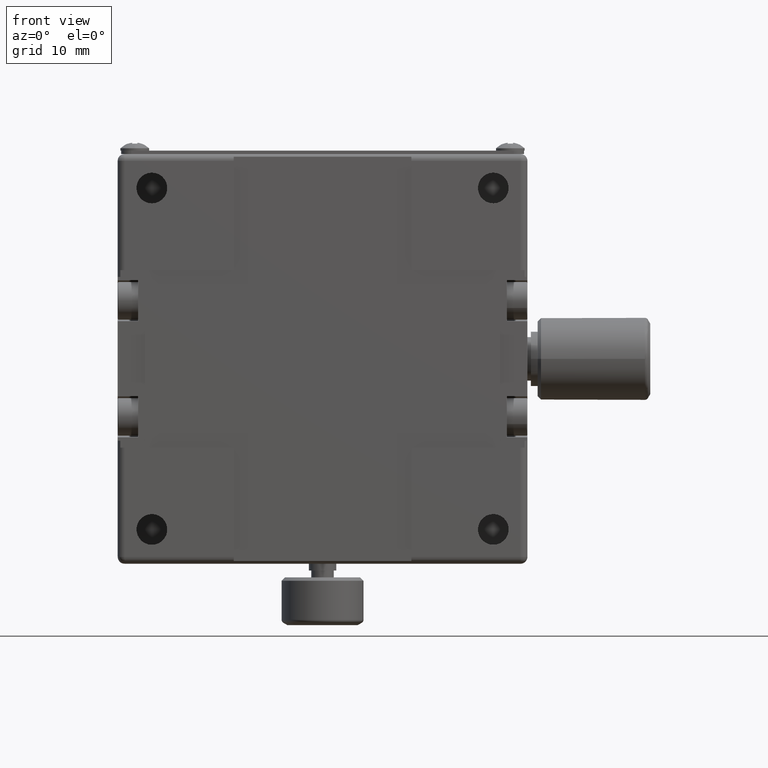
[diagram: clean part render]
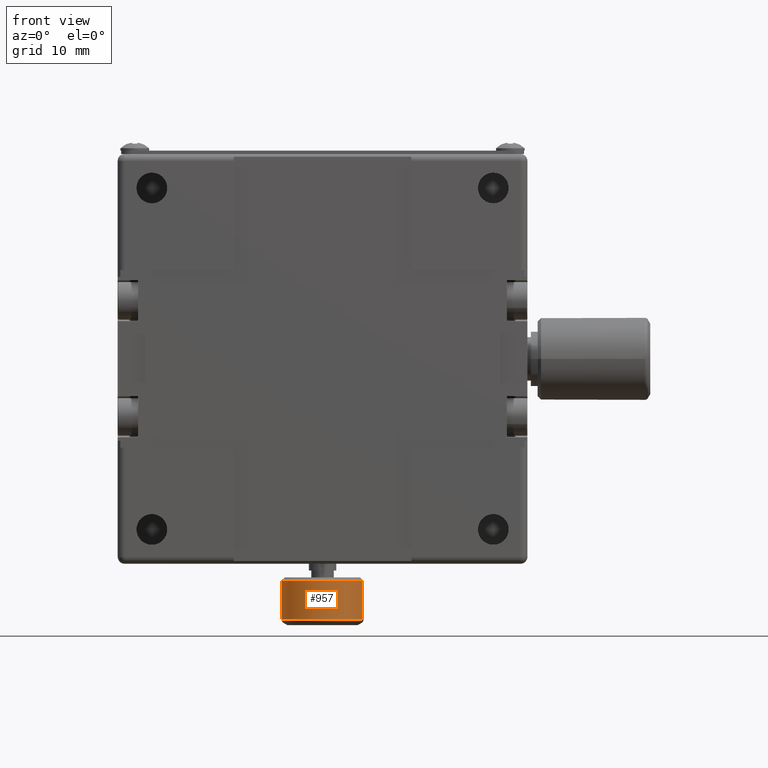
[diagram: same view with one face highlighted and labeled with its STEP entity id]
A machine part, front view. The second image highlights one B-rep face of the part: STEP entity #957.
In plain terms, the highlighted cylindrical surface (partial cylindrical patch) has radius 6 mm, axis along (-0, -0, 1).
Its self-contained STEP definition (entity closure, byte-faithful):
#625 = CARTESIAN_POINT ( 'NONE',  ( -5.614630180188100006, -15.42403131824790030, 8.965065063986799032 ) ) ;
#951 = CARTESIAN_POINT ( 'NONE',  ( 6.020515517580280473, -18.36059131111400333, 8.965065063986799032 ) ) ;
#957 = ADVANCED_FACE ( 'NONE', ( #33396 ), #5232, .T. ) ;
#1087 = EDGE_CURVE ( 'NONE', #29722, #34252, #1476, .T. ) ;
#1142 = EDGE_CURVE ( 'NONE', #16240, #24542, #18742, .T. ) ;
#1476 = CIRCLE ( 'NONE', #18177, 6.000000000000000000 ) ;
#1483 = VECTOR ( 'NONE', #18293, 1000.000000000000000 ) ;
#2077 = AXIS2_PLACEMENT_3D ( 'NONE', #28747, #28563, #3007 ) ;
#2243 = DIRECTION ( 'NONE',  ( 0.9695954748140320767, -0.2447133327388428536, 0.000000000000000000 ) ) ;
#3007 = DIRECTION ( 'NONE',  ( -0.9695954748140320767, 0.2447133327388428536, 0.000000000000000000 ) ) ;
#5232 = CYLINDRICAL_SURFACE ( 'NONE', #10423, 6.000000000000000000 ) ;
#5345 = EDGE_CURVE ( 'NONE', #24542, #34252, #29523, .T. ) ;
#5981 = DIRECTION ( 'NONE',  ( 4.132064210404360108E-17, 1.637193492977649901E-16, -1.000000000000000000 ) ) ;
#7157 = ORIENTED_EDGE ( 'NONE', *, *, #5345, .F. ) ;
#7427 = ORIENTED_EDGE ( 'NONE', *, *, #1087, .T. ) ;
#9559 = ORIENTED_EDGE ( 'NONE', *, *, #24115, .T. ) ;
#10423 = AXIS2_PLACEMENT_3D ( 'NONE', #33574, #28000, #2243 ) ;
#11411 = DIRECTION ( 'NONE',  ( -0.9695954748140320767, 0.2447133327388428536, 0.000000000000000000 ) ) ;
#11975 = ORIENTED_EDGE ( 'NONE', *, *, #1142, .F. ) ;
#12541 = LINE ( 'NONE', #951, #1483 ) ;
#15697 = EDGE_LOOP ( 'NONE', ( #7157, #11975, #9559, #7427 ) ) ;
#16240 = VERTEX_POINT ( 'NONE', #27058 ) ;
#18177 = AXIS2_PLACEMENT_3D ( 'NONE', #31897, #5981, #11411 ) ;
#18293 = DIRECTION ( 'NONE',  ( 4.618701254788259366E-17, -1.858051473097039880E-16, 1.000000000000000000 ) ) ;
#18742 = CIRCLE ( 'NONE', #2077, 6.000000000000000000 ) ;
#20387 = DIRECTION ( 'NONE',  ( 4.618701254788259366E-17, -1.858051473097039880E-16, 1.000000000000000000 ) ) ;
#24115 = EDGE_CURVE ( 'NONE', #16240, #29722, #12541, .T. ) ;
#24542 = VERTEX_POINT ( 'NONE', #33473 ) ;
#27058 = CARTESIAN_POINT ( 'NONE',  ( 6.020515517580280473, -18.36059131111400333, -38.21132486648345150 ) ) ;
#28000 = DIRECTION ( 'NONE',  ( -4.132064210404360108E-17, -1.637193492977649901E-16, 1.000000000000000000 ) ) ;
#28349 = CARTESIAN_POINT ( 'NONE',  ( -5.614630180188100006, -15.42403131824790030, -32.50000000107824860 ) ) ;
#28563 = DIRECTION ( 'NONE',  ( 4.132064210404360108E-17, 1.637193492977649901E-16, -1.000000000000000000 ) ) ;
#28747 = CARTESIAN_POINT ( 'NONE',  ( 0.2029426686960874859, -16.89231131468095271, -38.21132486648345150 ) ) ;
#29523 = LINE ( 'NONE', #625, #34368 ) ;
#29722 = VERTEX_POINT ( 'NONE', #36209 ) ;
#31897 = CARTESIAN_POINT ( 'NONE',  ( 0.2029426686960874859, -16.89231131468095271, -32.50000000107824860 ) ) ;
#33396 = FACE_OUTER_BOUND ( 'NONE', #15697, .T. ) ;
#33473 = CARTESIAN_POINT ( 'NONE',  ( -5.614630180188109776, -15.42403131824790030, -38.21132486648345150 ) ) ;
#33574 = CARTESIAN_POINT ( 'NONE',  ( 0.2029426686960895121, -16.89231131468095271, 8.965065063986799032 ) ) ;
#34252 = VERTEX_POINT ( 'NONE', #28349 ) ;
#34368 = VECTOR ( 'NONE', #20387, 1000.000000000000000 ) ;
#36209 = CARTESIAN_POINT ( 'NONE',  ( 6.020515517580280473, -18.36059131111400333, -32.50000000107824860 ) ) ;